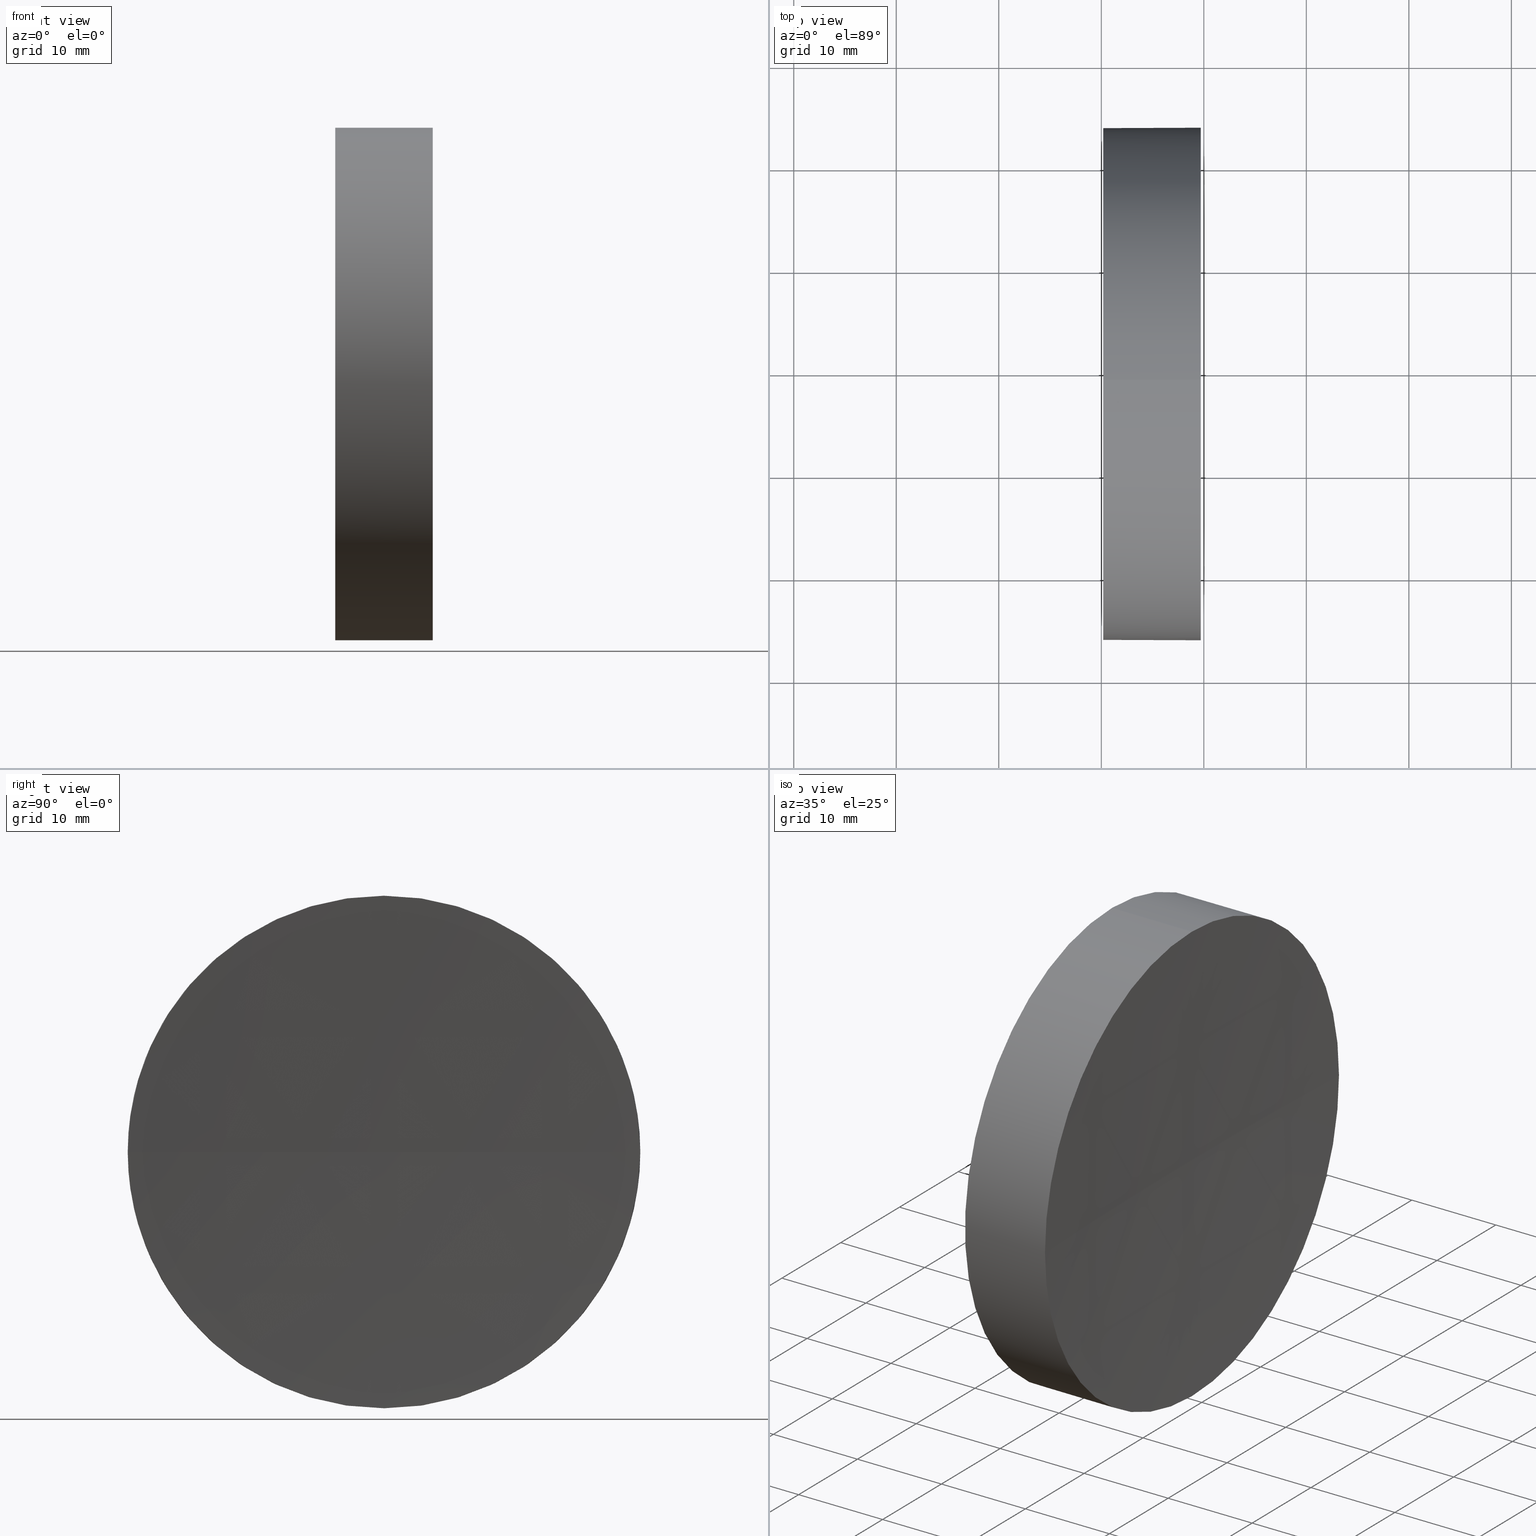
[diagram: canonical four-view strip — front | top / right | iso, engineering-drawing reading convention]
A machine part, canonical four-view strip (front | top / right | iso — engineering-drawing reading convention). The complete STEP part file that produces these views, byte-faithful:
ISO-10303-21;
HEADER;
FILE_DESCRIPTION (( 'STEP AP214' ),
    '1' );
FILE_NAME ('270048.STEP',
    '2019-07-23T05:43:58',
    ( '' ),
    ( '' ),
    'SwSTEP 2.0',
    'SolidWorks 2016',
    '' );
FILE_SCHEMA (( 'AUTOMOTIVE_DESIGN' ));
ENDSEC;

DATA;
#1 = MECHANICAL_DESIGN_GEOMETRIC_PRESENTATION_REPRESENTATION (  '', ( #121 ), #20 ) ;
#2 = CARTESIAN_POINT ( 'NONE',  ( 217.9702860043302100, 138.7560422467448700, 24.99999999999999300 ) ) ;
#3 = ORIENTED_EDGE ( 'NONE', *, *, #152, .T. ) ;
#4 =( NAMED_UNIT ( * ) SI_UNIT ( $, .STERADIAN. ) SOLID_ANGLE_UNIT ( ) );
#5 = DIRECTION ( 'NONE',  ( 0.0000000000000000000, 0.0000000000000000000, 1.000000000000000000 ) ) ;
#6 =( LENGTH_UNIT ( ) NAMED_UNIT ( * ) SI_UNIT ( .MILLI., .METRE. ) );
#7 = VERTEX_POINT ( 'NONE', #169 ) ;
#8 = AXIS2_PLACEMENT_3D ( 'NONE', #99, #114, #171 ) ;
#9 = SPHERICAL_SURFACE ( 'NONE', #61, 600.0000000000000000 ) ;
#10 = CLOSED_SHELL ( 'NONE', ( #94, #167, #153, #83, #133 ) ) ;
#11 = EDGE_CURVE ( 'NONE', #30, #183, #135, .T. ) ;
#12 = SHAPE_DEFINITION_REPRESENTATION ( #127, #109 ) ;
#13 = COLOUR_RGB ( '',1.000000000000000000, 1.000000000000000000, 1.000000000000000000 ) ;
#14 = DIRECTION ( 'NONE',  ( 0.0000000000000000000, 0.0000000000000000000, 1.000000000000000000 ) ) ;
#15 = CARTESIAN_POINT ( 'NONE',  ( 239.7063708809449700, 138.7560422467448700, -24.99999999999999300 ) ) ;
#16 = APPLICATION_PROTOCOL_DEFINITION ( 'draft international standard', 'automotive_design', 1998, #46 ) ;
#17 = AXIS2_PLACEMENT_3D ( 'NONE', #26, #39, #87 ) ;
#18 =( NAMED_UNIT ( * ) PLANE_ANGLE_UNIT ( ) SI_UNIT ( $, .RADIAN. ) );
#19 = EDGE_LOOP ( 'NONE', ( #120, #180, #42, #3 ) ) ;
#20 =( GEOMETRIC_REPRESENTATION_CONTEXT ( 3 ) GLOBAL_UNCERTAINTY_ASSIGNED_CONTEXT ( ( #78 ) ) GLOBAL_UNIT_ASSIGNED_CONTEXT ( ( #72, #158, #32 ) ) REPRESENTATION_CONTEXT ( 'NONE', 'WORKASPACE' ) );
#21 = EDGE_CURVE ( 'NONE', #30, #175, #52, .T. ) ;
#22 = EDGE_LOOP ( 'NONE', ( #117, #68, #110, #125 ) ) ;
#23 = VERTEX_POINT ( 'NONE', #155 ) ;
#24 = CARTESIAN_POINT ( 'NONE',  ( 217.9702860043302100, 138.7560422467448700, 0.0000000000000000000 ) ) ;
#25 = EDGE_CURVE ( 'NONE', #38, #122, #73, .T. ) ;
#26 = CARTESIAN_POINT ( 'NONE',  ( 239.7063708809449700, 138.7560422467448700, 0.0000000000000000000 ) ) ;
#27 = AXIS2_PLACEMENT_3D ( 'NONE', #24, #65, #139 ) ;
#28 = DIRECTION ( 'NONE',  ( -1.000000000000000000, -0.0000000000000000000, -0.0000000000000000000 ) ) ;
#29 = DIRECTION ( 'NONE',  ( 0.0000000000000000000, -1.000000000000000000, 0.0000000000000000000 ) ) ;
#30 = VERTEX_POINT ( 'NONE', #15 ) ;
#31 = CARTESIAN_POINT ( 'NONE',  ( 0.0000000000000000000, 0.0000000000000000000, 0.0000000000000000000 ) ) ;
#32 =( NAMED_UNIT ( * ) SI_UNIT ( $, .STERADIAN. ) SOLID_ANGLE_UNIT ( ) );
#33 = EDGE_CURVE ( 'NONE', #38, #7, #79, .T. ) ;
#34 = VECTOR ( 'NONE', #185, 1000.000000000000000 ) ;
#35 = STYLED_ITEM ( 'NONE', ( #88 ), #109 ) ;
#36 = ORIENTED_EDGE ( 'NONE', *, *, #104, .T. ) ;
#37 = CARTESIAN_POINT ( 'NONE',  ( 230.1853110698390300, 138.7560422467448700, 0.0000000000000000000 ) ) ;
#38 = VERTEX_POINT ( 'NONE', #115 ) ;
#39 = DIRECTION ( 'NONE',  ( -1.000000000000000000, -0.0000000000000000000, -0.0000000000000000000 ) ) ;
#40 = PRODUCT ( '270048', '270048', '', ( #89 ) ) ;
#41 = DIRECTION ( 'NONE',  ( 0.0000000000000000000, 0.0000000000000000000, 1.000000000000000000 ) ) ;
#42 = ORIENTED_EDGE ( 'NONE', *, *, #134, .F. ) ;
#43 = DIRECTION ( 'NONE',  ( 0.0000000000000000000, 0.0000000000000000000, -1.000000000000000000 ) ) ;
#44 =( NAMED_UNIT ( * ) SI_UNIT ( $, .STERADIAN. ) SOLID_ANGLE_UNIT ( ) );
#45 = FILL_AREA_STYLE ('',( #70 ) ) ;
#46 = APPLICATION_CONTEXT ( 'automotive_design' ) ;
#47 = AXIS2_PLACEMENT_3D ( 'NONE', #81, #112, #92 ) ;
#48 = CARTESIAN_POINT ( 'NONE',  ( 839.1853112950349200, 138.7560422467449000, 0.0000000000000000000 ) ) ;
#49 = ORIENTED_EDGE ( 'NONE', *, *, #126, .F. ) ;
#50 = PRESENTATION_LAYER_ASSIGNMENT (  '', '', ( #35 ) ) ;
#51 = FACE_OUTER_BOUND ( 'NONE', #19, .T. ) ;
#52 = CIRCLE ( 'NONE', #75, 24.99999999999999300 ) ;
#53 = PRODUCT_DEFINITION ( 'δ֪', '', #123, #111 ) ;
#54 = ORIENTED_EDGE ( 'NONE', *, *, #21, .T. ) ;
#55 = PLANE ( 'NONE',  #182 ) ;
#56 = DIRECTION ( 'NONE',  ( 0.0000000000000000000, 0.0000000000000000000, -1.000000000000000000 ) ) ;
#57 = APPLICATION_CONTEXT ( 'automotive_design' ) ;
#58 = PRESENTATION_STYLE_ASSIGNMENT (( #177 ) ) ;
#59 = ORIENTED_EDGE ( 'NONE', *, *, #11, .F. ) ;
#60 = FACE_OUTER_BOUND ( 'NONE', #113, .T. ) ;
#61 = AXIS2_PLACEMENT_3D ( 'NONE', #178, #5, #157 ) ;
#62 = ORIENTED_EDGE ( 'NONE', *, *, #104, .F. ) ;
#63 = DIRECTION ( 'NONE',  ( -1.000000000000000000, -0.0000000000000000000, -0.0000000000000000000 ) ) ;
#64 = CYLINDRICAL_SURFACE ( 'NONE', #27, 24.99999999999999300 ) ;
#65 = DIRECTION ( 'NONE',  ( -1.000000000000000000, -0.0000000000000000000, -0.0000000000000000000 ) ) ;
#66 = DIRECTION ( 'NONE',  ( -1.000000000000000000, -0.0000000000000000000, -0.0000000000000000000 ) ) ;
#67 =( LENGTH_UNIT ( ) NAMED_UNIT ( * ) SI_UNIT ( .MILLI., .METRE. ) );
#68 = ORIENTED_EDGE ( 'NONE', *, *, #179, .T. ) ;
#69 = CARTESIAN_POINT ( 'NONE',  ( 239.7063708809449700, 138.7560422467448700, 0.0000000000000000000 ) ) ;
#70 = FILL_AREA_STYLE_COLOUR ( '', #13 ) ;
#71 = MECHANICAL_DESIGN_GEOMETRIC_PRESENTATION_REPRESENTATION (  '', ( #35 ), #82 ) ;
#72 =( LENGTH_UNIT ( ) NAMED_UNIT ( * ) SI_UNIT ( .MILLI., .METRE. ) );
#73 = LINE ( 'NONE', #2, #34 ) ;
#74 = EDGE_LOOP ( 'NONE', ( #95, #36 ) ) ;
#75 = AXIS2_PLACEMENT_3D ( 'NONE', #137, #63, #41 ) ;
#76 = UNCERTAINTY_MEASURE_WITH_UNIT (LENGTH_MEASURE( 1.000000000000000100E-005 ), #6, 'distance_accuracy_value', 'NONE');
#77 = CIRCLE ( 'NONE', #162, 600.0000000000000000 ) ;
#78 = UNCERTAINTY_MEASURE_WITH_UNIT (LENGTH_MEASURE( 1.000000000000000100E-005 ), #72, 'distance_accuracy_value', 'NONE');
#79 = CIRCLE ( 'NONE', #17, 24.99999999999999300 ) ;
#80 = FACE_OUTER_BOUND ( 'NONE', #22, .T. ) ;
#81 = CARTESIAN_POINT ( 'NONE',  ( 230.1853110698390300, 138.7560422467448700, 0.0000000000000000000 ) ) ;
#82 =( GEOMETRIC_REPRESENTATION_CONTEXT ( 3 ) GLOBAL_UNCERTAINTY_ASSIGNED_CONTEXT ( ( #76 ) ) GLOBAL_UNIT_ASSIGNED_CONTEXT ( ( #6, #18, #4 ) ) REPRESENTATION_CONTEXT ( 'NONE', 'WORKASPACE' ) );
#83 = ADVANCED_FACE ( 'NONE', ( #60 ), #105, .T. ) ;
#84 = UNCERTAINTY_MEASURE_WITH_UNIT (LENGTH_MEASURE( 1.000000000000000100E-005 ), #67, 'distance_accuracy_value', 'NONE');
#85 = CARTESIAN_POINT ( 'NONE',  ( 230.1853110698390300, 138.7560422467448700, 24.99999999999999300 ) ) ;
#86 = ORIENTED_EDGE ( 'NONE', *, *, #134, .T. ) ;
#87 = DIRECTION ( 'NONE',  ( 0.0000000000000000000, 0.0000000000000000000, 1.000000000000000000 ) ) ;
#88 = PRESENTATION_STYLE_ASSIGNMENT (( #91 ) ) ;
#89 = PRODUCT_CONTEXT ( 'NONE', #57, 'mechanical' ) ;
#90 = DIRECTION ( 'NONE',  ( 0.0000000000000000000, -1.224646799147353200E-016, 1.000000000000000000 ) ) ;
#91 = SURFACE_STYLE_USAGE ( .BOTH. , #129 ) ;
#92 = DIRECTION ( 'NONE',  ( 0.0000000000000000000, 0.0000000000000000000, 1.000000000000000000 ) ) ;
#93 = VECTOR ( 'NONE', #66, 1000.000000000000000 ) ;
#94 = ADVANCED_FACE ( 'NONE', ( #154 ), #64, .T. ) ;
#95 = ORIENTED_EDGE ( 'NONE', *, *, #126, .T. ) ;
#96 = AXIS2_PLACEMENT_3D ( 'NONE', #159, #146, #29 ) ;
#97 = SURFACE_STYLE_FILL_AREA ( #45 ) ;
#98 = CARTESIAN_POINT ( 'NONE',  ( 230.1853110698390300, 138.7560422467448700, 0.0000000000000000000 ) ) ;
#99 = CARTESIAN_POINT ( 'NONE',  ( 217.9702860043302100, 138.7560422467448700, 0.0000000000000000000 ) ) ;
#100 = DIRECTION ( 'NONE',  ( 1.000000000000000000, 0.0000000000000000000, 0.0000000000000000000 ) ) ;
#101 = DIRECTION ( 'NONE',  ( -1.000000000000000000, -0.0000000000000000000, -0.0000000000000000000 ) ) ;
#102 = APPLICATION_PROTOCOL_DEFINITION ( 'draft international standard', 'automotive_design', 1998, #57 ) ;
#103 = DIRECTION ( 'NONE',  ( 0.0000000000000000000, 0.0000000000000000000, 1.000000000000000000 ) ) ;
#104 = EDGE_CURVE ( 'NONE', #183, #122, #108, .T. ) ;
#105 = CYLINDRICAL_SURFACE ( 'NONE', #8, 24.99999999999999300 ) ;
#106 = AXIS2_PLACEMENT_3D ( 'NONE', #48, #43, #147 ) ;
#107 = ORIENTED_EDGE ( 'NONE', *, *, #11, .T. ) ;
#108 = CIRCLE ( 'NONE', #184, 24.99999999999999300 ) ;
#109 = ADVANCED_BREP_SHAPE_REPRESENTATION ( '270048', ( #143, #131 ), #145 ) ;
#110 = ORIENTED_EDGE ( 'NONE', *, *, #152, .F. ) ;
#111 = PRODUCT_DEFINITION_CONTEXT ( 'detailed design', #46, 'design' ) ;
#112 = DIRECTION ( 'NONE',  ( -1.000000000000000000, -0.0000000000000000000, -0.0000000000000000000 ) ) ;
#113 = EDGE_LOOP ( 'NONE', ( #59, #54, #86, #144, #62 ) ) ;
#114 = DIRECTION ( 'NONE',  ( -1.000000000000000000, -0.0000000000000000000, -0.0000000000000000000 ) ) ;
#115 = CARTESIAN_POINT ( 'NONE',  ( 239.7063708809449700, 138.7560422467448700, 24.99999999999999300 ) ) ;
#116 = CARTESIAN_POINT ( 'NONE',  ( 839.1853112950349200, 138.7560422467449000, 0.0000000000000000000 ) ) ;
#117 = ORIENTED_EDGE ( 'NONE', *, *, #150, .F. ) ;
#118 = COLOUR_RGB ( '',1.000000000000000000, 1.000000000000000000, 1.000000000000000000 ) ;
#119 = CARTESIAN_POINT ( 'NONE',  ( 230.1853110698390300, 138.7560422467448700, -24.99999999999999300 ) ) ;
#120 = ORIENTED_EDGE ( 'NONE', *, *, #179, .F. ) ;
#121 = STYLED_ITEM ( 'NONE', ( #58 ), #143 ) ;
#122 = VERTEX_POINT ( 'NONE', #85 ) ;
#123 = PRODUCT_DEFINITION_FORMATION_WITH_SPECIFIED_SOURCE ( '�κ�', '', #40, .NOT_KNOWN. ) ;
#124 = CARTESIAN_POINT ( 'NONE',  ( 217.9702860043302100, 138.7560422467448700, -24.99999999999999300 ) ) ;
#125 = ORIENTED_EDGE ( 'NONE', *, *, #21, .F. ) ;
#126 = EDGE_CURVE ( 'NONE', #122, #183, #181, .T. ) ;
#127 = PRODUCT_DEFINITION_SHAPE ( 'NONE', 'NONE',  #53 ) ;
#128 = CARTESIAN_POINT ( 'NONE',  ( 239.7063708809450000, 113.7560422467444600, 0.0000000000000000000 ) ) ;
#129 = SURFACE_SIDE_STYLE ('',( #165 ) ) ;
#130 = DIRECTION ( 'NONE',  ( 0.0000000000000000000, -1.000000000000000000, -1.224646799147353200E-016 ) ) ;
#131 = AXIS2_PLACEMENT_3D ( 'NONE', #31, #161, #100 ) ;
#132 = ORIENTED_EDGE ( 'NONE', *, *, #25, .F. ) ;
#133 = ADVANCED_FACE ( 'NONE', ( #186 ), #55, .F. ) ;
#134 = EDGE_CURVE ( 'NONE', #175, #38, #164, .T. ) ;
#135 = LINE ( 'NONE', #124, #93 ) ;
#136 = CIRCLE ( 'NONE', #106, 600.0000000000000000 ) ;
#137 = CARTESIAN_POINT ( 'NONE',  ( 239.7063708809449700, 138.7560422467448700, 0.0000000000000000000 ) ) ;
#138 = PRESENTATION_LAYER_ASSIGNMENT (  '', '', ( #121 ) ) ;
#139 = DIRECTION ( 'NONE',  ( 0.0000000000000000000, 0.0000000000000000000, 1.000000000000000000 ) ) ;
#140 = ORIENTED_EDGE ( 'NONE', *, *, #33, .T. ) ;
#141 = DIRECTION ( 'NONE',  ( -1.000000000000000000, -0.0000000000000000000, -0.0000000000000000000 ) ) ;
#142 = FILL_AREA_STYLE ('',( #148 ) ) ;
#143 = MANIFOLD_SOLID_BREP ( '��ת1', #10 ) ;
#144 = ORIENTED_EDGE ( 'NONE', *, *, #25, .T. ) ;
#145 =( GEOMETRIC_REPRESENTATION_CONTEXT ( 3 ) GLOBAL_UNCERTAINTY_ASSIGNED_CONTEXT ( ( #84 ) ) GLOBAL_UNIT_ASSIGNED_CONTEXT ( ( #67, #149, #44 ) ) REPRESENTATION_CONTEXT ( 'NONE', 'WORKASPACE' ) );
#146 = DIRECTION ( 'NONE',  ( 0.0000000000000000000, 0.0000000000000000000, 1.000000000000000000 ) ) ;
#147 = DIRECTION ( 'NONE',  ( -1.000000000000000000, 0.0000000000000000000, 0.0000000000000000000 ) ) ;
#148 = FILL_AREA_STYLE_COLOUR ( '', #118 ) ;
#149 =( NAMED_UNIT ( * ) PLANE_ANGLE_UNIT ( ) SI_UNIT ( $, .RADIAN. ) );
#150 = EDGE_CURVE ( 'NONE', #7, #30, #156, .T. ) ;
#151 = EDGE_LOOP ( 'NONE', ( #163, #107, #49, #132, #140 ) ) ;
#152 = EDGE_CURVE ( 'NONE', #175, #23, #136, .T. ) ;
#153 = ADVANCED_FACE ( 'NONE', ( #51 ), #168, .F. ) ;
#154 = FACE_OUTER_BOUND ( 'NONE', #151, .T. ) ;
#155 = CARTESIAN_POINT ( 'NONE',  ( 239.1853112950349500, 138.7560422467448700, 0.0000000000000000000 ) ) ;
#156 = CIRCLE ( 'NONE', #173, 24.99999999999999300 ) ;
#157 = DIRECTION ( 'NONE',  ( 0.0000000000000000000, -1.000000000000000000, 0.0000000000000000000 ) ) ;
#158 =( NAMED_UNIT ( * ) PLANE_ANGLE_UNIT ( ) SI_UNIT ( $, .RADIAN. ) );
#159 = CARTESIAN_POINT ( 'NONE',  ( 839.1853112950349200, 138.7560422467449000, 0.0000000000000000000 ) ) ;
#160 = SURFACE_SIDE_STYLE ('',( #97 ) ) ;
#161 = DIRECTION ( 'NONE',  ( 0.0000000000000000000, 0.0000000000000000000, 1.000000000000000000 ) ) ;
#162 = AXIS2_PLACEMENT_3D ( 'NONE', #116, #90, #130 ) ;
#163 = ORIENTED_EDGE ( 'NONE', *, *, #150, .T. ) ;
#164 = CIRCLE ( 'NONE', #166, 24.99999999999999300 ) ;
#165 = SURFACE_STYLE_FILL_AREA ( #142 ) ;
#166 = AXIS2_PLACEMENT_3D ( 'NONE', #69, #28, #172 ) ;
#167 = ADVANCED_FACE ( 'NONE', ( #80 ), #9, .F. ) ;
#168 = SPHERICAL_SURFACE ( 'NONE', #96, 600.0000000000000000 ) ;
#169 = CARTESIAN_POINT ( 'NONE',  ( 239.7063708809450000, 163.7560422467453000, 3.061616997868432700E-015 ) ) ;
#170 = PRODUCT_RELATED_PRODUCT_CATEGORY ( 'part', '', ( #40 ) ) ;
#171 = DIRECTION ( 'NONE',  ( 0.0000000000000000000, 0.0000000000000000000, 1.000000000000000000 ) ) ;
#172 = DIRECTION ( 'NONE',  ( 0.0000000000000000000, 0.0000000000000000000, 1.000000000000000000 ) ) ;
#173 = AXIS2_PLACEMENT_3D ( 'NONE', #176, #101, #103 ) ;
#174 = DIRECTION ( 'NONE',  ( 1.000000000000000000, 0.0000000000000000000, 0.0000000000000000000 ) ) ;
#175 = VERTEX_POINT ( 'NONE', #128 ) ;
#176 = CARTESIAN_POINT ( 'NONE',  ( 239.7063708809449700, 138.7560422467448700, 0.0000000000000000000 ) ) ;
#177 = SURFACE_STYLE_USAGE ( .BOTH. , #160 ) ;
#178 = CARTESIAN_POINT ( 'NONE',  ( 839.1853112950349200, 138.7560422467449000, 0.0000000000000000000 ) ) ;
#179 = EDGE_CURVE ( 'NONE', #7, #23, #77, .T. ) ;
#180 = ORIENTED_EDGE ( 'NONE', *, *, #33, .F. ) ;
#181 = CIRCLE ( 'NONE', #47, 24.99999999999999300 ) ;
#182 = AXIS2_PLACEMENT_3D ( 'NONE', #37, #174, #56 ) ;
#183 = VERTEX_POINT ( 'NONE', #119 ) ;
#184 = AXIS2_PLACEMENT_3D ( 'NONE', #98, #141, #14 ) ;
#185 = DIRECTION ( 'NONE',  ( -1.000000000000000000, -0.0000000000000000000, -0.0000000000000000000 ) ) ;
#186 = FACE_OUTER_BOUND ( 'NONE', #74, .T. ) ;
ENDSEC;
END-ISO-10303-21;
